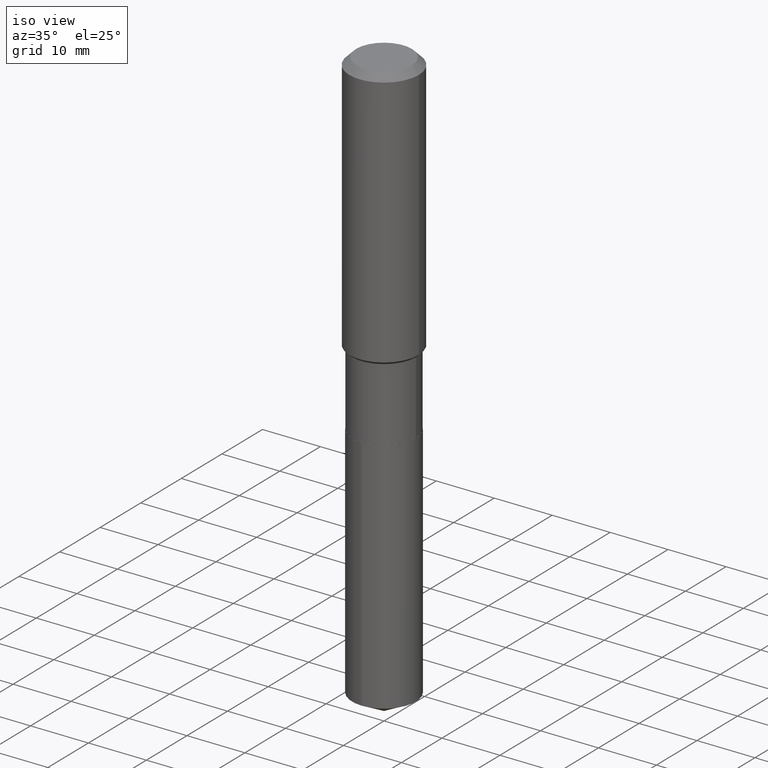
[diagram: clean part render]
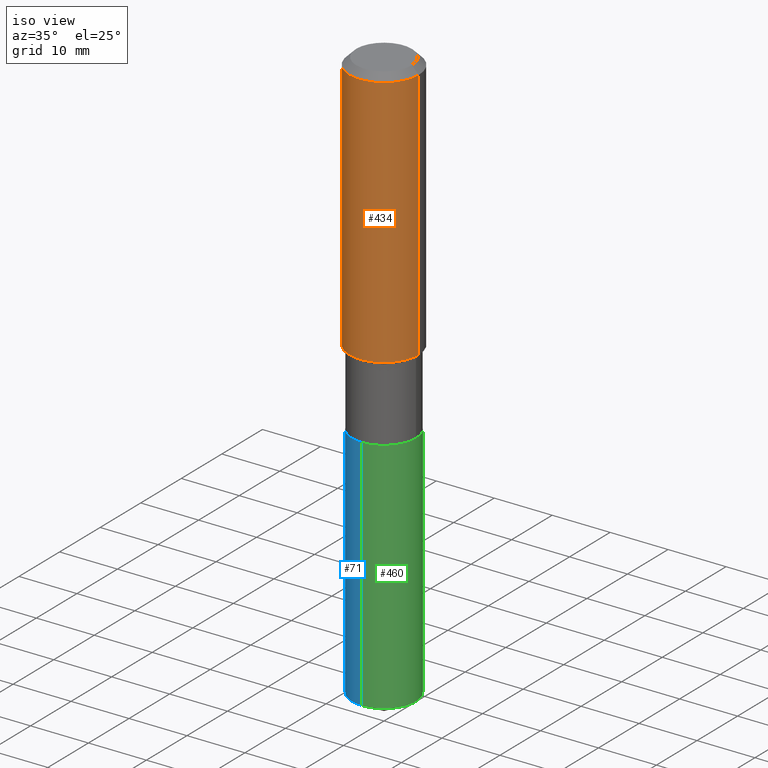
[diagram: same view with three faces highlighted in distinct colors, each labeled with its STEP entity id]
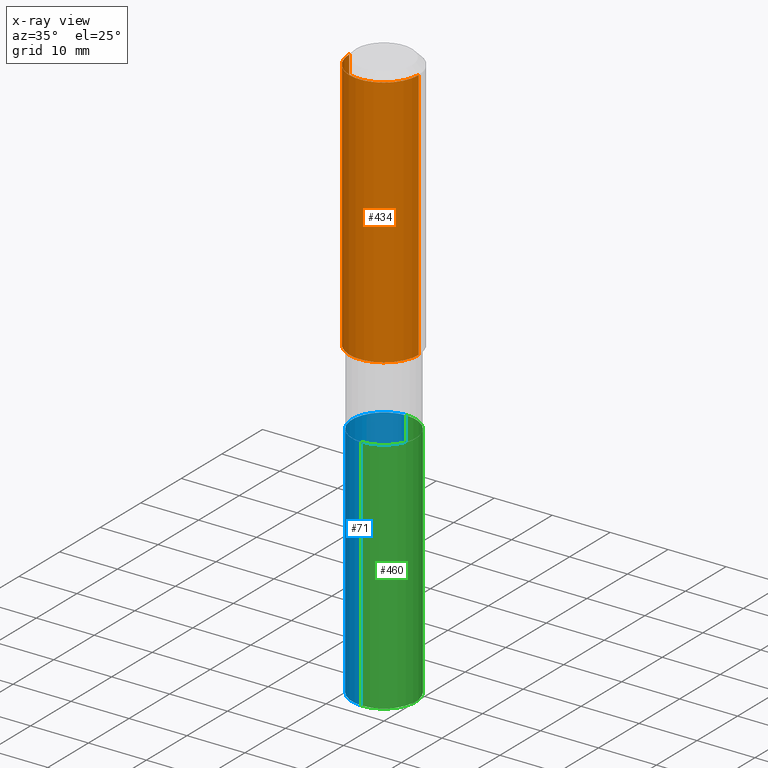
[diagram: x-ray of the same camera — body ghosted, the three highlighted faces saturated]
A machine part, iso view with three faces highlighted in distinct colors.
The next image is the same camera in x-ray (body ghosted, the three faces saturated) — at least one of them is partly hidden behind the body in this view.
Their STEP definitions:

[orange] entity #434 — the highlighted cylindrical surface (partial cylindrical patch) has radius 5.9995 mm, axis along (-0, 0, 1).
#8 = DIRECTION ( 'NONE',  ( -2.445468806185136597E-29, 3.491481338843145583E-15, 1.000000000000000000 ) ) ;
#21 = AXIS2_PLACEMENT_3D ( 'NONE', #342, #8, #146 ) ;
#29 = VECTOR ( 'NONE', #313, 39.37007874015748143 ) ;
#33 = EDGE_LOOP ( 'NONE', ( #39, #77, #157, #407 ) ) ;
#39 = ORIENTED_EDGE ( 'NONE', *, *, #414, .F. ) ;
#46 = CARTESIAN_POINT ( 'NONE',  ( 1.155239464041865506E-30, -1.649375784469511859E-16, -0.04724000000000028177 ) ) ;
#64 = EDGE_CURVE ( 'NONE', #268, #240, #197, .T. ) ;
#75 = AXIS2_PLACEMENT_3D ( 'NONE', #180, #218, #371 ) ;
#77 = ORIENTED_EDGE ( 'NONE', *, *, #257, .T. ) ;
#103 = VERTEX_POINT ( 'NONE', #298 ) ;
#113 = FACE_OUTER_BOUND ( 'NONE', #33, .T. ) ;
#146 = DIRECTION ( 'NONE',  ( 1.000000000000000000, -6.982962677686266711E-15, 0.000000000000000000 ) ) ;
#157 = ORIENTED_EDGE ( 'NONE', *, *, #64, .T. ) ;
#161 = AXIS2_PLACEMENT_3D ( 'NONE', #46, #201, #191 ) ;
#180 = CARTESIAN_POINT ( 'NONE',  ( 0.000000000000000000, 0.000000000000000000, 0.000000000000000000 ) ) ;
#191 = DIRECTION ( 'NONE',  ( 1.000000000000000000, -6.982962677686266711E-15, 0.000000000000000000 ) ) ;
#197 = LINE ( 'NONE', #264, #379 ) ;
#201 = DIRECTION ( 'NONE',  ( -2.445468806185136597E-29, 3.491481338843145583E-15, 1.000000000000000000 ) ) ;
#218 = DIRECTION ( 'NONE',  ( -2.445468806185136597E-29, 3.491481338843145583E-15, 1.000000000000000000 ) ) ;
#240 = VERTEX_POINT ( 'NONE', #432 ) ;
#253 = EDGE_CURVE ( 'NONE', #375, #240, #483, .T. ) ;
#257 = EDGE_CURVE ( 'NONE', #103, #268, #449, .T. ) ;
#263 = CYLINDRICAL_SURFACE ( 'NONE', #75, 0.2362000000000001043 ) ;
#264 = CARTESIAN_POINT ( 'NONE',  ( 0.2362000000000001043, -1.649375784469496920E-15, 1.151752954443000508E-29 ) ) ;
#268 = VERTEX_POINT ( 'NONE', #425 ) ;
#298 = CARTESIAN_POINT ( 'NONE',  ( -0.2362000000000002153, -4.486432084063041733E-15, -1.765649999999999720 ) ) ;
#313 = DIRECTION ( 'NONE',  ( -2.445468806185136877E-29, 3.491481338843145188E-15, 1.000000000000000000 ) ) ;
#342 = CARTESIAN_POINT ( 'NONE',  ( 4.317841997640785659E-29, -6.164734025928398916E-15, -1.765649999999999720 ) ) ;
#368 = CARTESIAN_POINT ( 'NONE',  ( -0.2361999999999999933, -1.486533860322317535E-15, -0.04724000000000028177 ) ) ;
#371 = DIRECTION ( 'NONE',  ( 1.000000000000000000, -6.982962677686266711E-15, 4.876176775795935793E-29 ) ) ;
#375 = VERTEX_POINT ( 'NONE', #368 ) ;
#379 = VECTOR ( 'NONE', #427, 39.37007874015748143 ) ;
#407 = ORIENTED_EDGE ( 'NONE', *, *, #253, .F. ) ;
#414 = EDGE_CURVE ( 'NONE', #103, #375, #417, .T. ) ;
#417 = LINE ( 'NONE', #470, #29 ) ;
#425 = CARTESIAN_POINT ( 'NONE',  ( 0.2362000000000002153, -7.814109810397897019E-15, -1.765649999999999720 ) ) ;
#427 = DIRECTION ( 'NONE',  ( -2.445468806185136877E-29, 3.491481338843145188E-15, 1.000000000000000000 ) ) ;
#432 = CARTESIAN_POINT ( 'NONE',  ( 0.2361999999999999933, -1.814313362916447440E-15, -0.04724000000000028177 ) ) ;
#434 = ADVANCED_FACE ( 'NONE', ( #113 ), #263, .T. ) ;
#449 = CIRCLE ( 'NONE', #21, 0.2362000000000002153 ) ;
#470 = CARTESIAN_POINT ( 'NONE',  ( -0.2362000000000001043, 1.678301941865357380E-15, -1.161852468318209317E-29 ) ) ;
#483 = CIRCLE ( 'NONE', #161, 0.2361999999999999933 ) ;

[blue] entity #71 — the highlighted cylindrical surface (partial cylindrical patch) has radius 5.5004 mm, axis along (-0, 0, 1).
#1 = AXIS2_PLACEMENT_3D ( 'NONE', #94, #480, #281 ) ;
#43 = EDGE_CURVE ( 'NONE', #291, #60, #105, .T. ) ;
#49 = LINE ( 'NONE', #459, #61 ) ;
#60 = VERTEX_POINT ( 'NONE', #341 ) ;
#61 = VECTOR ( 'NONE', #267, 39.37007874015748143 ) ;
#71 = ADVANCED_FACE ( 'NONE', ( #200 ), #390, .T. ) ;
#85 = DIRECTION ( 'NONE',  ( -6.982962677686265133E-15, -1.000000000000000000, 3.784596620176766988E-15 ) ) ;
#94 = CARTESIAN_POINT ( 'NONE',  ( 5.583983472043140562E-29, -7.972448489114438042E-15, -2.283399999999999874 ) ) ;
#105 = CIRCLE ( 'NONE', #1, 0.2165500000000000203 ) ;
#110 = EDGE_CURVE ( 'NONE', #209, #188, #422, .T. ) ;
#123 = EDGE_LOOP ( 'NONE', ( #274, #353, #155, #454 ) ) ;
#142 = CARTESIAN_POINT ( 'NONE',  ( 5.583983472043140562E-29, -7.972448489114438042E-15, -2.283399999999999874 ) ) ;
#155 = ORIENTED_EDGE ( 'NONE', *, *, #205, .T. ) ;
#165 = DIRECTION ( 'NONE',  ( -6.982962677686265133E-15, -1.000000000000000000, 2.523064413451178124E-15 ) ) ;
#188 = VERTEX_POINT ( 'NONE', #374 ) ;
#200 = FACE_OUTER_BOUND ( 'NONE', #123, .T. ) ;
#205 = EDGE_CURVE ( 'NONE', #188, #60, #49, .T. ) ;
#209 = VERTEX_POINT ( 'NONE', #431 ) ;
#244 = AXIS2_PLACEMENT_3D ( 'NONE', #142, #457, #85 ) ;
#267 = DIRECTION ( 'NONE',  ( -2.445387649813631666E-29, 3.491597559386275113E-15, 1.000000000000000000 ) ) ;
#274 = ORIENTED_EDGE ( 'NONE', *, *, #330, .F. ) ;
#281 = DIRECTION ( 'NONE',  ( -6.982962677686265133E-15, -1.000000000000000000, 3.784596620176766988E-15 ) ) ;
#284 = LINE ( 'NONE', #395, #354 ) ;
#291 = VERTEX_POINT ( 'NONE', #349 ) ;
#330 = EDGE_CURVE ( 'NONE', #209, #291, #284, .T. ) ;
#341 = CARTESIAN_POINT ( 'NONE',  ( -1.512160567852905011E-15, -0.2165500000000079583, -2.283399999999998986 ) ) ;
#343 = CARTESIAN_POINT ( 'NONE',  ( 9.538562461858214852E-29, -1.361891454135399872E-14, -3.900558322573707937 ) ) ;
#349 = CARTESIAN_POINT ( 'NONE',  ( 1.538680294288592549E-15, 0.2165499999999920544, -2.283400000000000762 ) ) ;
#353 = ORIENTED_EDGE ( 'NONE', *, *, #110, .T. ) ;
#354 = VECTOR ( 'NONE', #364, 39.37007874015748143 ) ;
#364 = DIRECTION ( 'NONE',  ( -2.445387649813631666E-29, 3.491597559386275113E-15, 1.000000000000000000 ) ) ;
#374 = CARTESIAN_POINT ( 'NONE',  ( -1.512160567852865370E-15, -0.2165500000000135927, -3.900558322573707493 ) ) ;
#390 = CYLINDRICAL_SURFACE ( 'NONE', #244, 0.2165500000000000203 ) ;
#395 = CARTESIAN_POINT ( 'NONE',  ( 1.538680294288552514E-15, 0.2165499999999920544, -2.283400000000000762 ) ) ;
#401 = DIRECTION ( 'NONE',  ( -2.445387649813631666E-29, 3.491597559386274719E-15, 1.000000000000000000 ) ) ;
#422 = CIRCLE ( 'NONE', #456, 0.2165500000000000203 ) ;
#431 = CARTESIAN_POINT ( 'NONE',  ( 1.538680294288591957E-15, 0.2165499999999863368, -3.900558322573708381 ) ) ;
#454 = ORIENTED_EDGE ( 'NONE', *, *, #43, .F. ) ;
#456 = AXIS2_PLACEMENT_3D ( 'NONE', #343, #401, #165 ) ;
#457 = DIRECTION ( 'NONE',  ( -2.445387649813631666E-29, 3.491597559386274719E-15, 1.000000000000000000 ) ) ;
#459 = CARTESIAN_POINT ( 'NONE',  ( -1.512160567852905011E-15, -0.2165500000000079583, -2.283399999999998986 ) ) ;
#480 = DIRECTION ( 'NONE',  ( -2.445387649813631666E-29, 3.491597559386274719E-15, 1.000000000000000000 ) ) ;

[green] entity #460 — the highlighted cylindrical surface (partial cylindrical patch) has radius 5.5004 mm, axis along (-0, 0, 1).
#13 = DIRECTION ( 'NONE',  ( -2.445387649813631666E-29, 3.491597559386274719E-15, 1.000000000000000000 ) ) ;
#28 = ORIENTED_EDGE ( 'NONE', *, *, #205, .F. ) ;
#31 = AXIS2_PLACEMENT_3D ( 'NONE', #143, #339, #458 ) ;
#40 = AXIS2_PLACEMENT_3D ( 'NONE', #118, #13, #260 ) ;
#49 = LINE ( 'NONE', #459, #61 ) ;
#60 = VERTEX_POINT ( 'NONE', #341 ) ;
#61 = VECTOR ( 'NONE', #267, 39.37007874015748143 ) ;
#115 = ORIENTED_EDGE ( 'NONE', *, *, #330, .T. ) ;
#118 = CARTESIAN_POINT ( 'NONE',  ( 5.583983472043140562E-29, -7.972448489114438042E-15, -2.283399999999999874 ) ) ;
#129 = DIRECTION ( 'NONE',  ( -6.982962677686265133E-15, -1.000000000000000000, 3.784596620176766988E-15 ) ) ;
#132 = CIRCLE ( 'NONE', #31, 0.2165500000000000203 ) ;
#143 = CARTESIAN_POINT ( 'NONE',  ( 9.538562461858214852E-29, -1.361891454135399872E-14, -3.900558322573707937 ) ) ;
#188 = VERTEX_POINT ( 'NONE', #374 ) ;
#205 = EDGE_CURVE ( 'NONE', #188, #60, #49, .T. ) ;
#208 = CARTESIAN_POINT ( 'NONE',  ( 5.583983472043140562E-29, -7.972448489114438042E-15, -2.283399999999999874 ) ) ;
#209 = VERTEX_POINT ( 'NONE', #431 ) ;
#220 = EDGE_CURVE ( 'NONE', #188, #209, #132, .T. ) ;
#243 = EDGE_LOOP ( 'NONE', ( #315, #115, #444, #28 ) ) ;
#260 = DIRECTION ( 'NONE',  ( -6.982962677686265133E-15, -1.000000000000000000, 3.784596620176766988E-15 ) ) ;
#267 = DIRECTION ( 'NONE',  ( -2.445387649813631666E-29, 3.491597559386275113E-15, 1.000000000000000000 ) ) ;
#277 = AXIS2_PLACEMENT_3D ( 'NONE', #208, #360, #129 ) ;
#284 = LINE ( 'NONE', #395, #354 ) ;
#291 = VERTEX_POINT ( 'NONE', #349 ) ;
#315 = ORIENTED_EDGE ( 'NONE', *, *, #220, .T. ) ;
#322 = CIRCLE ( 'NONE', #277, 0.2165500000000000203 ) ;
#330 = EDGE_CURVE ( 'NONE', #209, #291, #284, .T. ) ;
#339 = DIRECTION ( 'NONE',  ( -2.445387649813631666E-29, 3.491597559386274719E-15, 1.000000000000000000 ) ) ;
#341 = CARTESIAN_POINT ( 'NONE',  ( -1.512160567852905011E-15, -0.2165500000000079583, -2.283399999999998986 ) ) ;
#349 = CARTESIAN_POINT ( 'NONE',  ( 1.538680294288592549E-15, 0.2165499999999920544, -2.283400000000000762 ) ) ;
#354 = VECTOR ( 'NONE', #364, 39.37007874015748143 ) ;
#360 = DIRECTION ( 'NONE',  ( -2.445387649813631666E-29, 3.491597559386274719E-15, 1.000000000000000000 ) ) ;
#364 = DIRECTION ( 'NONE',  ( -2.445387649813631666E-29, 3.491597559386275113E-15, 1.000000000000000000 ) ) ;
#374 = CARTESIAN_POINT ( 'NONE',  ( -1.512160567852865370E-15, -0.2165500000000135927, -3.900558322573707493 ) ) ;
#376 = CYLINDRICAL_SURFACE ( 'NONE', #40, 0.2165500000000000203 ) ;
#395 = CARTESIAN_POINT ( 'NONE',  ( 1.538680294288552514E-15, 0.2165499999999920544, -2.283400000000000762 ) ) ;
#399 = EDGE_CURVE ( 'NONE', #60, #291, #322, .T. ) ;
#431 = CARTESIAN_POINT ( 'NONE',  ( 1.538680294288591957E-15, 0.2165499999999863368, -3.900558322573708381 ) ) ;
#444 = ORIENTED_EDGE ( 'NONE', *, *, #399, .F. ) ;
#458 = DIRECTION ( 'NONE',  ( -6.982962677686265133E-15, -1.000000000000000000, 2.523064413451178124E-15 ) ) ;
#459 = CARTESIAN_POINT ( 'NONE',  ( -1.512160567852905011E-15, -0.2165500000000079583, -2.283399999999998986 ) ) ;
#460 = ADVANCED_FACE ( 'NONE', ( #475 ), #376, .T. ) ;
#475 = FACE_OUTER_BOUND ( 'NONE', #243, .T. ) ;